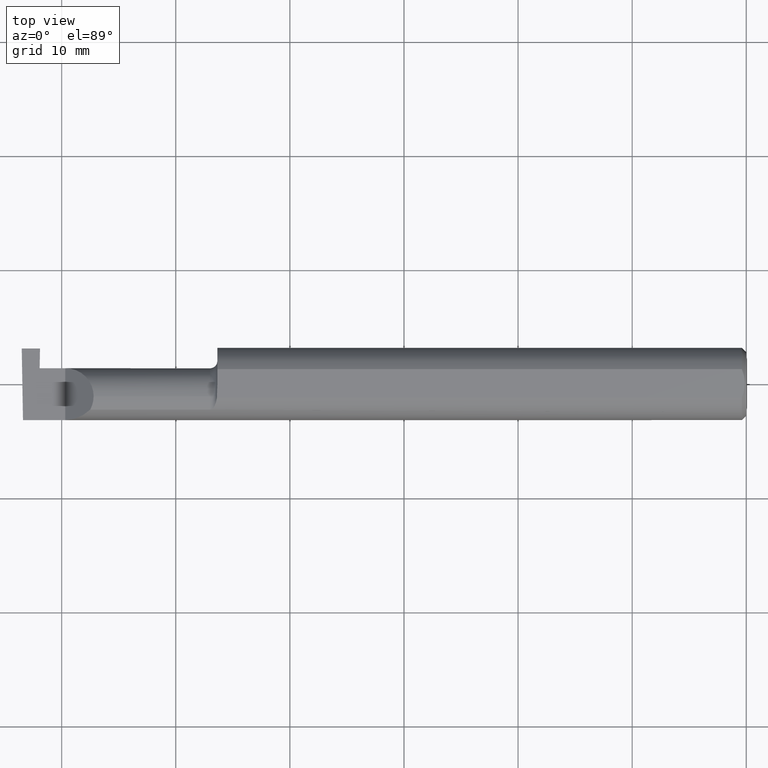
[diagram: clean part render]
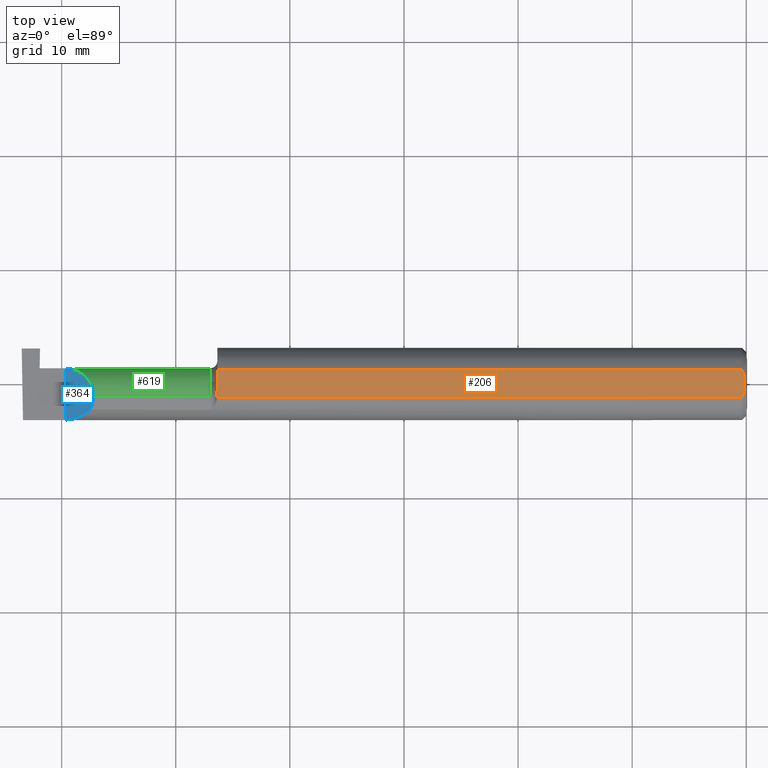
[diagram: same view with three faces highlighted in distinct colors, each labeled with its STEP entity id]
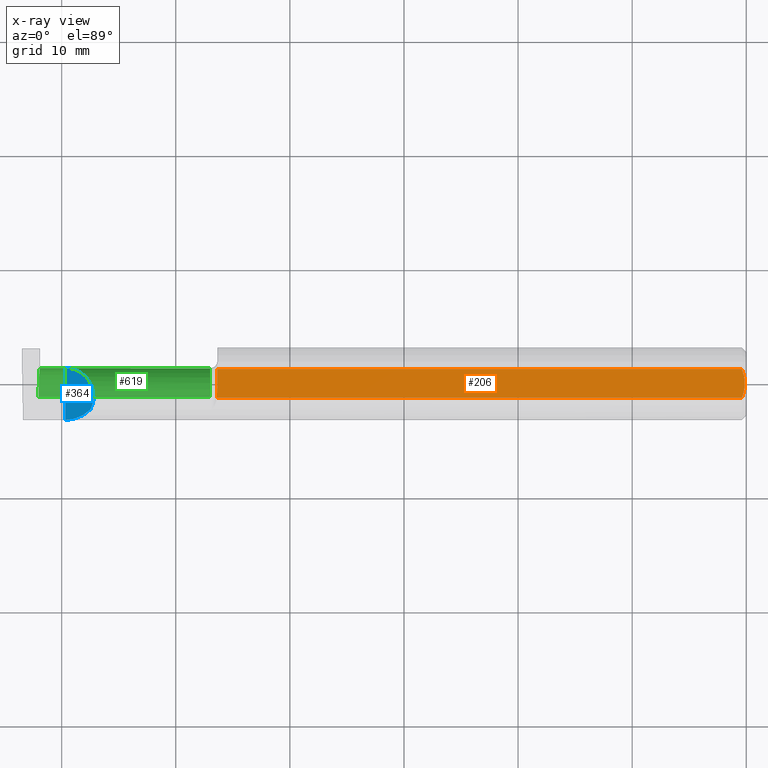
[diagram: x-ray of the same camera — body ghosted, the three highlighted faces saturated]
A machine part, top view with three faces highlighted in distinct colors.
The next image is the same camera in x-ray (body ghosted, the three faces saturated) — at least one of them is partly hidden behind the body in this view.
Their STEP definitions:

[orange] entity #206 — the highlighted planar face has unit normal (0, 0, 1).
#3 = CARTESIAN_POINT ( 'NONE',  ( -0.01499999999999987454, 0.04895916665957496944, 0.1148500000000000076 ) ) ;
#9 = EDGE_CURVE ( 'NONE', #439, #497, #161, .T. ) ;
#11 = CARTESIAN_POINT ( 'NONE',  ( -0.004999999999999963675, -0.008410771716546847077, 0.1148500000000000215 ) ) ;
#17 = CARTESIAN_POINT ( 'NONE',  ( -1.826326891871145941, -0.04895916665872474677, 0.1148500000000000076 ) ) ;
#20 = ORIENTED_EDGE ( 'NONE', *, *, #9, .F. ) ;
#52 = ORIENTED_EDGE ( 'NONE', *, *, #566, .F. ) ;
#57 = ORIENTED_EDGE ( 'NONE', *, *, #453, .F. ) ;
#66 = EDGE_CURVE ( 'NONE', #783, #710, #165, .T. ) ;
#73 = CARTESIAN_POINT ( 'NONE',  ( -1.826365755776839572, -0.04470142088163384098, 0.1148500000000000076 ) ) ;
#74 = ORIENTED_EDGE ( 'NONE', *, *, #306, .F. ) ;
#78 = CARTESIAN_POINT ( 'NONE',  ( -0.01499999999999999944, -0.04895916665957456698, 0.1148500000000000076 ) ) ;
#79 = CARTESIAN_POINT ( 'NONE',  ( -1.825000000000000400, 0.0001781444078671173391, 0.1148500000000000076 ) ) ;
#80 = B_SPLINE_CURVE_WITH_KNOTS ( 'NONE', 3,
 ( #329, #11, #568, #147, #346, #341 ),
 .UNSPECIFIED., .F., .F.,
 ( 4, 2, 4 ),
 ( 0.003658435455108829341, 0.004289327297787135992, 0.004920219140465443078 ),
 .UNSPECIFIED. ) ;
#95 = CARTESIAN_POINT ( 'NONE',  ( -1.826365755776840016, -0.03650543323727816619, 0.1148500000000000215 ) ) ;
#99 = LINE ( 'NONE', #415, #540 ) ;
#102 = DIRECTION ( 'NONE',  ( 0.000000000000000000, 1.000000000000000000, 0.000000000000000000 ) ) ;
#115 = CARTESIAN_POINT ( 'NONE',  ( -2.500000000000000000, -0.1248500000000000165, 0.1148500000000000076 ) ) ;
#133 = CARTESIAN_POINT ( 'NONE',  ( -0.01499999999999987454, 0.04895916665957496944, 0.1148500000000000076 ) ) ;
#135 = CARTESIAN_POINT ( 'NONE',  ( -1.826326891871145941, -0.04895916665872474677, 0.1148500000000000076 ) ) ;
#142 = CARTESIAN_POINT ( 'NONE',  ( -0.004999999999999962808, 0.008410227287019789166, 0.1148500000000000076 ) ) ;
#147 = CARTESIAN_POINT ( 'NONE',  ( -0.009415874254822409126, -0.03313958207962817981, 0.1148500000000000076 ) ) ;
#161 = LINE ( 'NONE', #343, #597 ) ;
#165 = LINE ( 'NONE', #413, #466 ) ;
#180 = FACE_OUTER_BOUND ( 'NONE', #354, .T. ) ;
#197 = CARTESIAN_POINT ( 'NONE',  ( -1.826365755776839572, -0.04385000000000001397, 0.1148500000000000076 ) ) ;
#206 = ADVANCED_FACE ( 'NONE', ( #180 ), #423, .T. ) ;
#254 = CARTESIAN_POINT ( 'NONE',  ( -1.826362484150213072, -0.04555293709188820706, 0.1148500000000000076 ) ) ;
#270 = CARTESIAN_POINT ( 'NONE',  ( -0.009410502401328735278, 0.03310661131402437007, 0.1148499999999999938 ) ) ;
#275 = CARTESIAN_POINT ( 'NONE',  ( -1.826365755776839572, -0.04385000000000001397, 0.1148500000000000076 ) ) ;
#278 = CARTESIAN_POINT ( 'NONE',  ( -1.825400391910593445, -0.01449986171080063641, 0.1148500000000000076 ) ) ;
#282 = CARTESIAN_POINT ( 'NONE',  ( -1.826090261609496723, -0.02916889382056605043, 0.1148499999999999938 ) ) ;
#297 = ORIENTED_EDGE ( 'NONE', *, *, #449, .F. ) ;
#306 = EDGE_CURVE ( 'NONE', #497, #693, #743, .T. ) ;
#319 = CARTESIAN_POINT ( 'NONE',  ( -1.825000000000000400, 0.04895916665957496944, 0.1148500000000000076 ) ) ;
#328 = CARTESIAN_POINT ( 'NONE',  ( -0.01193974418109659125, 0.04115525648180411861, 0.1148500000000000215 ) ) ;
#329 = CARTESIAN_POINT ( 'NONE',  ( -0.004999999999999990563, -1.358826068685392540E-17, 0.1148500000000000076 ) ) ;
#334 = CARTESIAN_POINT ( 'NONE',  ( -1.825000000000000400, 0.0001781444078671173391, 0.1148500000000000076 ) ) ;
#341 = CARTESIAN_POINT ( 'NONE',  ( -0.01499999999999999944, -0.04895916665957456698, 0.1148500000000000076 ) ) ;
#343 = CARTESIAN_POINT ( 'NONE',  ( 0.000000000000000000, -0.04895916665957456698, 0.1148500000000000076 ) ) ;
#346 = CARTESIAN_POINT ( 'NONE',  ( -0.01195732443765547791, -0.04120008761723505802, 0.1148500000000000076 ) ) ;
#354 = EDGE_LOOP ( 'NONE', ( #20, #57, #503, #297, #728, #52, #74 ) ) ;
#358 = DIRECTION ( 'NONE',  ( 0.000000000000000000, 0.000000000000000000, 1.000000000000000000 ) ) ;
#366 = AXIS2_PLACEMENT_3D ( 'NONE', #115, #358, #541 ) ;
#390 = CARTESIAN_POINT ( 'NONE',  ( -0.004999999999999990563, -1.358826068685392540E-17, 0.1148500000000000076 ) ) ;
#413 = CARTESIAN_POINT ( 'NONE',  ( -1.825000000000000400, -0.1248500000000000165, 0.1148500000000000076 ) ) ;
#415 = CARTESIAN_POINT ( 'NONE',  ( 0.000000000000000000, 0.04895916665957456698, 0.1148500000000000076 ) ) ;
#423 = PLANE ( 'NONE',  #366 ) ;
#427 = B_SPLINE_CURVE_WITH_KNOTS ( 'NONE', 3,
 ( #275, #95, #282, #278, #523, #79 ),
 .UNSPECIFIED., .F., .F.,
 ( 4, 2, 4 ),
 ( 0.009485158816280120364, 0.01004274199597734486, 0.01060032517567456936 ),
 .UNSPECIFIED. ) ;
#439 = VERTEX_POINT ( 'NONE', #78 ) ;
#442 = CARTESIAN_POINT ( 'NONE',  ( -1.826365755776839572, -0.04385000000000001397, 0.1148500000000000076 ) ) ;
#449 = EDGE_CURVE ( 'NONE', #710, #688, #99, .T. ) ;
#453 = EDGE_CURVE ( 'NONE', #607, #439, #80, .T. ) ;
#466 = VECTOR ( 'NONE', #102, 39.37007874015748143 ) ;
#497 = VERTEX_POINT ( 'NONE', #17 ) ;
#503 = ORIENTED_EDGE ( 'NONE', *, *, #727, .F. ) ;
#510 = CARTESIAN_POINT ( 'NONE',  ( -0.005947935873631213927, 0.01679708999422687907, 0.1148500000000000076 ) ) ;
#512 = CARTESIAN_POINT ( 'NONE',  ( -0.004999999999999990563, -1.358826068685392540E-17, 0.1148500000000000076 ) ) ;
#522 = DIRECTION ( 'NONE',  ( 1.000000000000000000, -0.000000000000000000, -0.000000000000000000 ) ) ;
#523 = CARTESIAN_POINT ( 'NONE',  ( -1.824999999999999956, -0.007185469346090044528, 0.1148500000000000076 ) ) ;
#540 = VECTOR ( 'NONE', #522, 39.37007874015748143 ) ;
#541 = DIRECTION ( 'NONE',  ( -1.000000000000000000, 0.000000000000000000, 0.000000000000000000 ) ) ;
#554 = CARTESIAN_POINT ( 'NONE',  ( -1.826349474474288082, -0.04725615793094951195, 0.1148499999999999938 ) ) ;
#558 = B_SPLINE_CURVE_WITH_KNOTS ( 'NONE', 3,
 ( #3, #328, #270, #510, #142, #390 ),
 .UNSPECIFIED., .F., .F.,
 ( 4, 2, 4 ),
 ( 0.002396733445051246140, 0.003027584450080037740, 0.003658435455108829341 ),
 .UNSPECIFIED. ) ;
#566 = EDGE_CURVE ( 'NONE', #693, #783, #427, .T. ) ;
#568 = CARTESIAN_POINT ( 'NONE',  ( -0.005932194444709712640, -0.01671525318617311795, 0.1148499999999999938 ) ) ;
#597 = VECTOR ( 'NONE', #757, 39.37007874015748143 ) ;
#607 = VERTEX_POINT ( 'NONE', #512 ) ;
#688 = VERTEX_POINT ( 'NONE', #133 ) ;
#693 = VERTEX_POINT ( 'NONE', #197 ) ;
#710 = VERTEX_POINT ( 'NONE', #319 ) ;
#727 = EDGE_CURVE ( 'NONE', #688, #607, #558, .T. ) ;
#728 = ORIENTED_EDGE ( 'NONE', *, *, #66, .F. ) ;
#743 = B_SPLINE_CURVE_WITH_KNOTS ( 'NONE', 3,
 ( #135, #785, #554, #254, #73, #442 ),
 .UNSPECIFIED., .F., .F.,
 ( 4, 2, 4 ),
 ( 0.009355882855483742266, 0.009420520835881931315, 0.009485158816280120364 ),
 .UNSPECIFIED. ) ;
#757 = DIRECTION ( 'NONE',  ( -1.000000000000000000, 0.000000000000000000, 0.000000000000000000 ) ) ;
#783 = VERTEX_POINT ( 'NONE', #334 ) ;
#785 = CARTESIAN_POINT ( 'NONE',  ( -1.826339737573315913, -0.04810771292169493257, 0.1148500000000000215 ) ) ;

[blue] entity #364 — the highlighted planar face has unit normal (0.7071, 0, -0.7071).
#5 = LINE ( 'NONE', #342, #208 ) ;
#18 = DIRECTION ( 'NONE',  ( 0.000000000000000000, 1.000000000000000000, 0.000000000000000000 ) ) ;
#68 = DIRECTION ( 'NONE',  ( 0.7071067811865459074, 0.000000000000000000, 0.7071067811865492381 ) ) ;
#69 = EDGE_CURVE ( 'NONE', #671, #773, #300, .T. ) ;
#101 =( BOUNDED_CURVE ( )  B_SPLINE_CURVE ( 3, ( #262, #391, #507, #621 ),
 .UNSPECIFIED., .F., .F. ) 
 B_SPLINE_CURVE_WITH_KNOTS ( ( 4, 4 ),
 ( 0.000000000000000000, 1.570796326794896558 ),
 .UNSPECIFIED. ) 
 CURVE ( )  GEOMETRIC_REPRESENTATION_ITEM ( )  RATIONAL_B_SPLINE_CURVE ( ( 1.000000000000000000, 0.8047378541243649375, 0.8047378541243649375, 1.000000000000000000 ) ) 
 REPRESENTATION_ITEM ( '' )  );
#119 = EDGE_LOOP ( 'NONE', ( #517, #238, #649, #157 ) ) ;
#130 = FACE_OUTER_BOUND ( 'NONE', #119, .T. ) ;
#148 = CARTESIAN_POINT ( 'NONE',  ( -2.287163018370355072, -0.1127002472623169216, 0.06283698162964553025 ) ) ;
#157 = ORIENTED_EDGE ( 'NONE', *, *, #562, .T. ) ;
#194 = AXIS2_PLACEMENT_3D ( 'NONE', #606, #612, #68 ) ;
#208 = VECTOR ( 'NONE', #18, 39.37007874015748143 ) ;
#232 = CARTESIAN_POINT ( 'NONE',  ( -2.252000000000000668, -0.06008937020638503712, 0.09799999999999998990 ) ) ;
#238 = ORIENTED_EDGE ( 'NONE', *, *, #315, .T. ) ;
#262 = CARTESIAN_POINT ( 'NONE',  ( -2.252000000000000668, -0.04385000000000001397, 0.09800000000000000377 ) ) ;
#293 = CARTESIAN_POINT ( 'NONE',  ( -2.350000000000000089, 0.05414999999999988572, 1.836970198721028825E-17 ) ) ;
#296 =( BOUNDED_CURVE ( )  B_SPLINE_CURVE ( 3, ( #635, #569, #148, #472 ),
 .UNSPECIFIED., .F., .F. ) 
 B_SPLINE_CURVE_WITH_KNOTS ( ( 4, 4 ),
 ( 4.712388980384690562, 5.476375539154175520 ),
 .UNSPECIFIED. ) 
 CURVE ( )  GEOMETRIC_REPRESENTATION_ITEM ( )  RATIONAL_B_SPLINE_CURVE ( ( 1.000000000000000000, 0.9519489620492029847, 0.9519489620492029847, 1.000000000000000000 ) ) 
 REPRESENTATION_ITEM ( '' )  );
#300 =( BOUNDED_CURVE ( )  B_SPLINE_CURVE ( 3, ( #763, #524, #232, #478 ),
 .UNSPECIFIED., .F., .F. ) 
 B_SPLINE_CURVE_WITH_KNOTS ( ( 4, 4 ),
 ( 5.791092865617133434, 6.283185307179586232 ),
 .UNSPECIFIED. ) 
 CURVE ( )  GEOMETRIC_REPRESENTATION_ITEM ( )  RATIONAL_B_SPLINE_CURVE ( ( 1.000000000000000000, 0.9799220177372784946, 0.9799220177372784946, 1.000000000000000000 ) ) 
 REPRESENTATION_ITEM ( '' )  );
#311 = CARTESIAN_POINT ( 'NONE',  ( -2.350000000000000089, -0.1248500000000000026, 1.836970198721028825E-17 ) ) ;
#315 = EDGE_CURVE ( 'NONE', #773, #750, #101, .T. ) ;
#342 = CARTESIAN_POINT ( 'NONE',  ( -2.350000000000000089, -0.2000000000000000111, 1.836970198721028825E-17 ) ) ;
#344 = VERTEX_POINT ( 'NONE', #311 ) ;
#364 = ADVANCED_FACE ( 'NONE', ( #130 ), #374, .F. ) ;
#374 = PLANE ( 'NONE',  #194 ) ;
#391 = CARTESIAN_POINT ( 'NONE',  ( -2.252000000000000668, 0.01355707088743670317, 0.09799999999999996214 ) ) ;
#397 = CARTESIAN_POINT ( 'NONE',  ( -2.252000000000000668, -0.04385000000000001397, 0.09800000000000000377 ) ) ;
#472 = CARTESIAN_POINT ( 'NONE',  ( -2.263628075281542529, -0.09015216647662421812, 0.08637192471845822617 ) ) ;
#478 = CARTESIAN_POINT ( 'NONE',  ( -2.252000000000000668, -0.04385000000000001397, 0.09800000000000000377 ) ) ;
#507 = CARTESIAN_POINT ( 'NONE',  ( -2.292592929112563738, 0.05415000000000004532, 0.05740707088743669112 ) ) ;
#517 = ORIENTED_EDGE ( 'NONE', *, *, #69, .T. ) ;
#524 = CARTESIAN_POINT ( 'NONE',  ( -2.255955442396118560, -0.07583965973232772995, 0.09404455760388213958 ) ) ;
#562 = EDGE_CURVE ( 'NONE', #344, #671, #296, .T. ) ;
#569 = CARTESIAN_POINT ( 'NONE',  ( -2.317406910344188997, -0.1248500000000000304, 0.03259308965581166062 ) ) ;
#578 = EDGE_CURVE ( 'NONE', #344, #750, #5, .T. ) ;
#606 = CARTESIAN_POINT ( 'NONE',  ( -2.350000000000000089, -0.2000000000000000111, 1.836970198721028825E-17 ) ) ;
#612 = DIRECTION ( 'NONE',  ( 0.7071067811865492381, 0.000000000000000000, -0.7071067811865459074 ) ) ;
#621 = CARTESIAN_POINT ( 'NONE',  ( -2.350000000000000089, 0.05414999999999988572, 1.836970198721028825E-17 ) ) ;
#635 = CARTESIAN_POINT ( 'NONE',  ( -2.350000000000000089, -0.1248500000000000026, 1.836970198721028825E-17 ) ) ;
#649 = ORIENTED_EDGE ( 'NONE', *, *, #578, .F. ) ;
#671 = VERTEX_POINT ( 'NONE', #744 ) ;
#744 = CARTESIAN_POINT ( 'NONE',  ( -2.263628075281542529, -0.09015216647662421812, 0.08637192471845822617 ) ) ;
#750 = VERTEX_POINT ( 'NONE', #293 ) ;
#763 = CARTESIAN_POINT ( 'NONE',  ( -2.263628075281542529, -0.09015216647662421812, 0.08637192471845822617 ) ) ;
#773 = VERTEX_POINT ( 'NONE', #397 ) ;

[green] entity #619 — the highlighted cylindrical surface (edge-blend (fillet) strip) has radius 2.4892 mm, axis along (1, -0, -0).
#1 = VECTOR ( 'NONE', #62, 39.37007874015748143 ) ;
#19 = CARTESIAN_POINT ( 'NONE',  ( -2.441854867654528416, 0.002850604310161268268, -0.09800000000000001765 ) ) ;
#23 = DIRECTION ( 'NONE',  ( 1.000000000000000000, -0.000000000000000000, -0.000000000000000000 ) ) ;
#24 = DIRECTION ( 'NONE',  ( 0.000000000000000000, 0.000000000000000000, 1.000000000000000000 ) ) ;
#32 = EDGE_CURVE ( 'NONE', #223, #499, #494, .T. ) ;
#43 = EDGE_CURVE ( 'NONE', #202, #326, #220, .T. ) ;
#53 = ORIENTED_EDGE ( 'NONE', *, *, #504, .F. ) ;
#56 = CARTESIAN_POINT ( 'NONE',  ( -1.849999999999999867, -0.04385000000000001397, 0.09800000000000000377 ) ) ;
#60 = AXIS2_PLACEMENT_3D ( 'NONE', #226, #23, #336 ) ;
#62 = DIRECTION ( 'NONE',  ( 1.000000000000000000, -0.000000000000000000, -0.000000000000000000 ) ) ;
#71 = AXIS2_PLACEMENT_3D ( 'NONE', #463, #592, #643 ) ;
#96 = CARTESIAN_POINT ( 'NONE',  ( -1.849999999999999867, -0.04385000000000001397, 0.000000000000000000 ) ) ;
#101 =( BOUNDED_CURVE ( )  B_SPLINE_CURVE ( 3, ( #262, #391, #507, #621 ),
 .UNSPECIFIED., .F., .F. ) 
 B_SPLINE_CURVE_WITH_KNOTS ( ( 4, 4 ),
 ( 0.000000000000000000, 1.570796326794896558 ),
 .UNSPECIFIED. ) 
 CURVE ( )  GEOMETRIC_REPRESENTATION_ITEM ( )  RATIONAL_B_SPLINE_CURVE ( ( 1.000000000000000000, 0.8047378541243649375, 0.8047378541243649375, 1.000000000000000000 ) ) 
 REPRESENTATION_ITEM ( '' )  );
#103 = EDGE_CURVE ( 'NONE', #192, #365, #638, .T. ) ;
#123 =( BOUNDED_CURVE ( )  B_SPLINE_CURVE ( 3, ( #587, #163, #405, #231 ),
 .UNSPECIFIED., .F., .F. ) 
 B_SPLINE_CURVE_WITH_KNOTS ( ( 4, 4 ),
 ( 4.463962699426424763, 4.711356644242685299 ),
 .UNSPECIFIED. ) 
 CURVE ( )  GEOMETRIC_REPRESENTATION_ITEM ( )  RATIONAL_B_SPLINE_CURVE ( ( 1.000000000000000000, 0.9949061863229000657, 0.9949061863229000657, 1.000000000000000000 ) ) 
 REPRESENTATION_ITEM ( '' )  );
#134 = EDGE_CURVE ( 'NONE', #750, #223, #539, .T. ) ;
#141 = CARTESIAN_POINT ( 'NONE',  ( -1.824999999999999956, -0.04385000000000001397, 0.09800000000000000377 ) ) ;
#156 = VECTOR ( 'NONE', #217, 39.37007874015748143 ) ;
#163 = CARTESIAN_POINT ( 'NONE',  ( -2.437660734290017395, 0.05314349951121607324, -0.01618353831829626166 ) ) ;
#192 = VERTEX_POINT ( 'NONE', #598 ) ;
#202 = VERTEX_POINT ( 'NONE', #56 ) ;
#217 = DIRECTION ( 'NONE',  ( 1.000000000000000000, -0.000000000000000000, -0.000000000000000000 ) ) ;
#220 = CIRCLE ( 'NONE', #664, 0.09800000000000000377 ) ;
#223 = VERTEX_POINT ( 'NONE', #244 ) ;
#226 = CARTESIAN_POINT ( 'NONE',  ( -1.824999999999999956, -0.04385000000000001397, 0.000000000000000000 ) ) ;
#231 = CARTESIAN_POINT ( 'NONE',  ( -2.436999999999999833, 0.05414999123725446062, -4.144270477499314721E-05 ) ) ;
#244 = CARTESIAN_POINT ( 'NONE',  ( -2.436999999999999833, 0.05415000000000000369, 8.266364455779613651E-17 ) ) ;
#248 = EDGE_CURVE ( 'NONE', #773, #202, #552, .T. ) ;
#262 = CARTESIAN_POINT ( 'NONE',  ( -2.252000000000000668, -0.04385000000000001397, 0.09800000000000000377 ) ) ;
#281 = LINE ( 'NONE', #751, #156 ) ;
#283 = CARTESIAN_POINT ( 'NONE',  ( -2.440353341463135539, 0.03970102213383035900, -0.06931214282740397192 ) ) ;
#293 = CARTESIAN_POINT ( 'NONE',  ( -2.350000000000000089, 0.05414999999999988572, 1.836970198721028825E-17 ) ) ;
#315 = EDGE_CURVE ( 'NONE', #773, #750, #101, .T. ) ;
#326 = VERTEX_POINT ( 'NONE', #565 ) ;
#336 = DIRECTION ( 'NONE',  ( 0.000000000000000000, 0.000000000000000000, 1.000000000000000000 ) ) ;
#337 = CARTESIAN_POINT ( 'NONE',  ( -2.441853376795600994, -0.04385000000000004172, -0.09799999999999998990 ) ) ;
#365 = VERTEX_POINT ( 'NONE', #560 ) ;
#369 = EDGE_CURVE ( 'NONE', #365, #499, #123, .T. ) ;
#391 = CARTESIAN_POINT ( 'NONE',  ( -2.252000000000000668, 0.01355707088743670317, 0.09799999999999996214 ) ) ;
#397 = CARTESIAN_POINT ( 'NONE',  ( -2.252000000000000668, -0.04385000000000001397, 0.09800000000000000377 ) ) ;
#405 = CARTESIAN_POINT ( 'NONE',  ( -2.437331655309490142, 0.05414656493488109040, -0.008143655253979651190 ) ) ;
#416 = ORIENTED_EDGE ( 'NONE', *, *, #43, .T. ) ;
#420 = DIRECTION ( 'NONE',  ( -1.000000000000000000, 0.000000000000000000, 0.000000000000000000 ) ) ;
#463 = CARTESIAN_POINT ( 'NONE',  ( -2.436999999999999833, -0.04385000000000001397, 0.000000000000000000 ) ) ;
#473 = EDGE_LOOP ( 'NONE', ( #53, #764, #725, #766, #574, #661, #593, #416 ) ) ;
#494 = CIRCLE ( 'NONE', #71, 0.09800000000000000377 ) ;
#499 = VERTEX_POINT ( 'NONE', #747 ) ;
#504 = EDGE_CURVE ( 'NONE', #192, #326, #281, .T. ) ;
#507 = CARTESIAN_POINT ( 'NONE',  ( -2.292592929112563738, 0.05415000000000004532, 0.05740707088743669112 ) ) ;
#528 = CYLINDRICAL_SURFACE ( 'NONE', #60, 0.09800000000000000377 ) ;
#539 = LINE ( 'NONE', #723, #615 ) ;
#552 = LINE ( 'NONE', #141, #1 ) ;
#560 = CARTESIAN_POINT ( 'NONE',  ( -2.437982208140546891, 0.05115612325138245431, -0.02403823089877875005 ) ) ;
#565 = CARTESIAN_POINT ( 'NONE',  ( -1.849999999999999867, -0.04385000000000003478, -0.09800000000000000377 ) ) ;
#574 = ORIENTED_EDGE ( 'NONE', *, *, #134, .F. ) ;
#583 = DIRECTION ( 'NONE',  ( -1.000000000000000000, 0.000000000000000000, 0.000000000000000000 ) ) ;
#587 = CARTESIAN_POINT ( 'NONE',  ( -2.437982208140546891, 0.05115612325138245431, -0.02403823089877875005 ) ) ;
#592 = DIRECTION ( 'NONE',  ( -1.000000000000000000, 0.000000000000000000, 0.000000000000000000 ) ) ;
#593 = ORIENTED_EDGE ( 'NONE', *, *, #248, .T. ) ;
#598 = CARTESIAN_POINT ( 'NONE',  ( -2.441853376795600994, -0.04385000000000004172, -0.09799999999999998990 ) ) ;
#615 = VECTOR ( 'NONE', #420, 39.37007874015748143 ) ;
#619 = ADVANCED_FACE ( 'NONE', ( #742 ), #528, .T. ) ;
#621 = CARTESIAN_POINT ( 'NONE',  ( -2.350000000000000089, 0.05414999999999988572, 1.836970198721028825E-17 ) ) ;
#638 =( BOUNDED_CURVE ( )  B_SPLINE_CURVE ( 3, ( #337, #19, #283, #753 ),
 .UNSPECIFIED., .F., .F. ) 
 B_SPLINE_CURVE_WITH_KNOTS ( ( 4, 4 ),
 ( 3.140983202202990654, 4.463962699426421210 ),
 .UNSPECIFIED. ) 
 CURVE ( )  GEOMETRIC_REPRESENTATION_ITEM ( )  RATIONAL_B_SPLINE_CURVE ( ( 1.000000000000000000, 0.8593853101475603662, 0.8593853101475603662, 1.000000000000000000 ) ) 
 REPRESENTATION_ITEM ( '' )  );
#643 = DIRECTION ( 'NONE',  ( 0.000000000000000000, 0.000000000000000000, 1.000000000000000000 ) ) ;
#661 = ORIENTED_EDGE ( 'NONE', *, *, #315, .F. ) ;
#664 = AXIS2_PLACEMENT_3D ( 'NONE', #96, #583, #24 ) ;
#723 = CARTESIAN_POINT ( 'NONE',  ( -1.824999999999999956, 0.05414999999999998981, 8.266365894244626938E-17 ) ) ;
#725 = ORIENTED_EDGE ( 'NONE', *, *, #369, .T. ) ;
#742 = FACE_OUTER_BOUND ( 'NONE', #473, .T. ) ;
#747 = CARTESIAN_POINT ( 'NONE',  ( -2.436999999999999833, 0.05414999123725446062, -4.144270477499314721E-05 ) ) ;
#750 = VERTEX_POINT ( 'NONE', #293 ) ;
#751 = CARTESIAN_POINT ( 'NONE',  ( -1.824999999999999956, -0.04385000000000002091, -0.09800000000000000377 ) ) ;
#753 = CARTESIAN_POINT ( 'NONE',  ( -2.437982208140546891, 0.05115612325138245431, -0.02403823089877875005 ) ) ;
#764 = ORIENTED_EDGE ( 'NONE', *, *, #103, .T. ) ;
#766 = ORIENTED_EDGE ( 'NONE', *, *, #32, .F. ) ;
#773 = VERTEX_POINT ( 'NONE', #397 ) ;